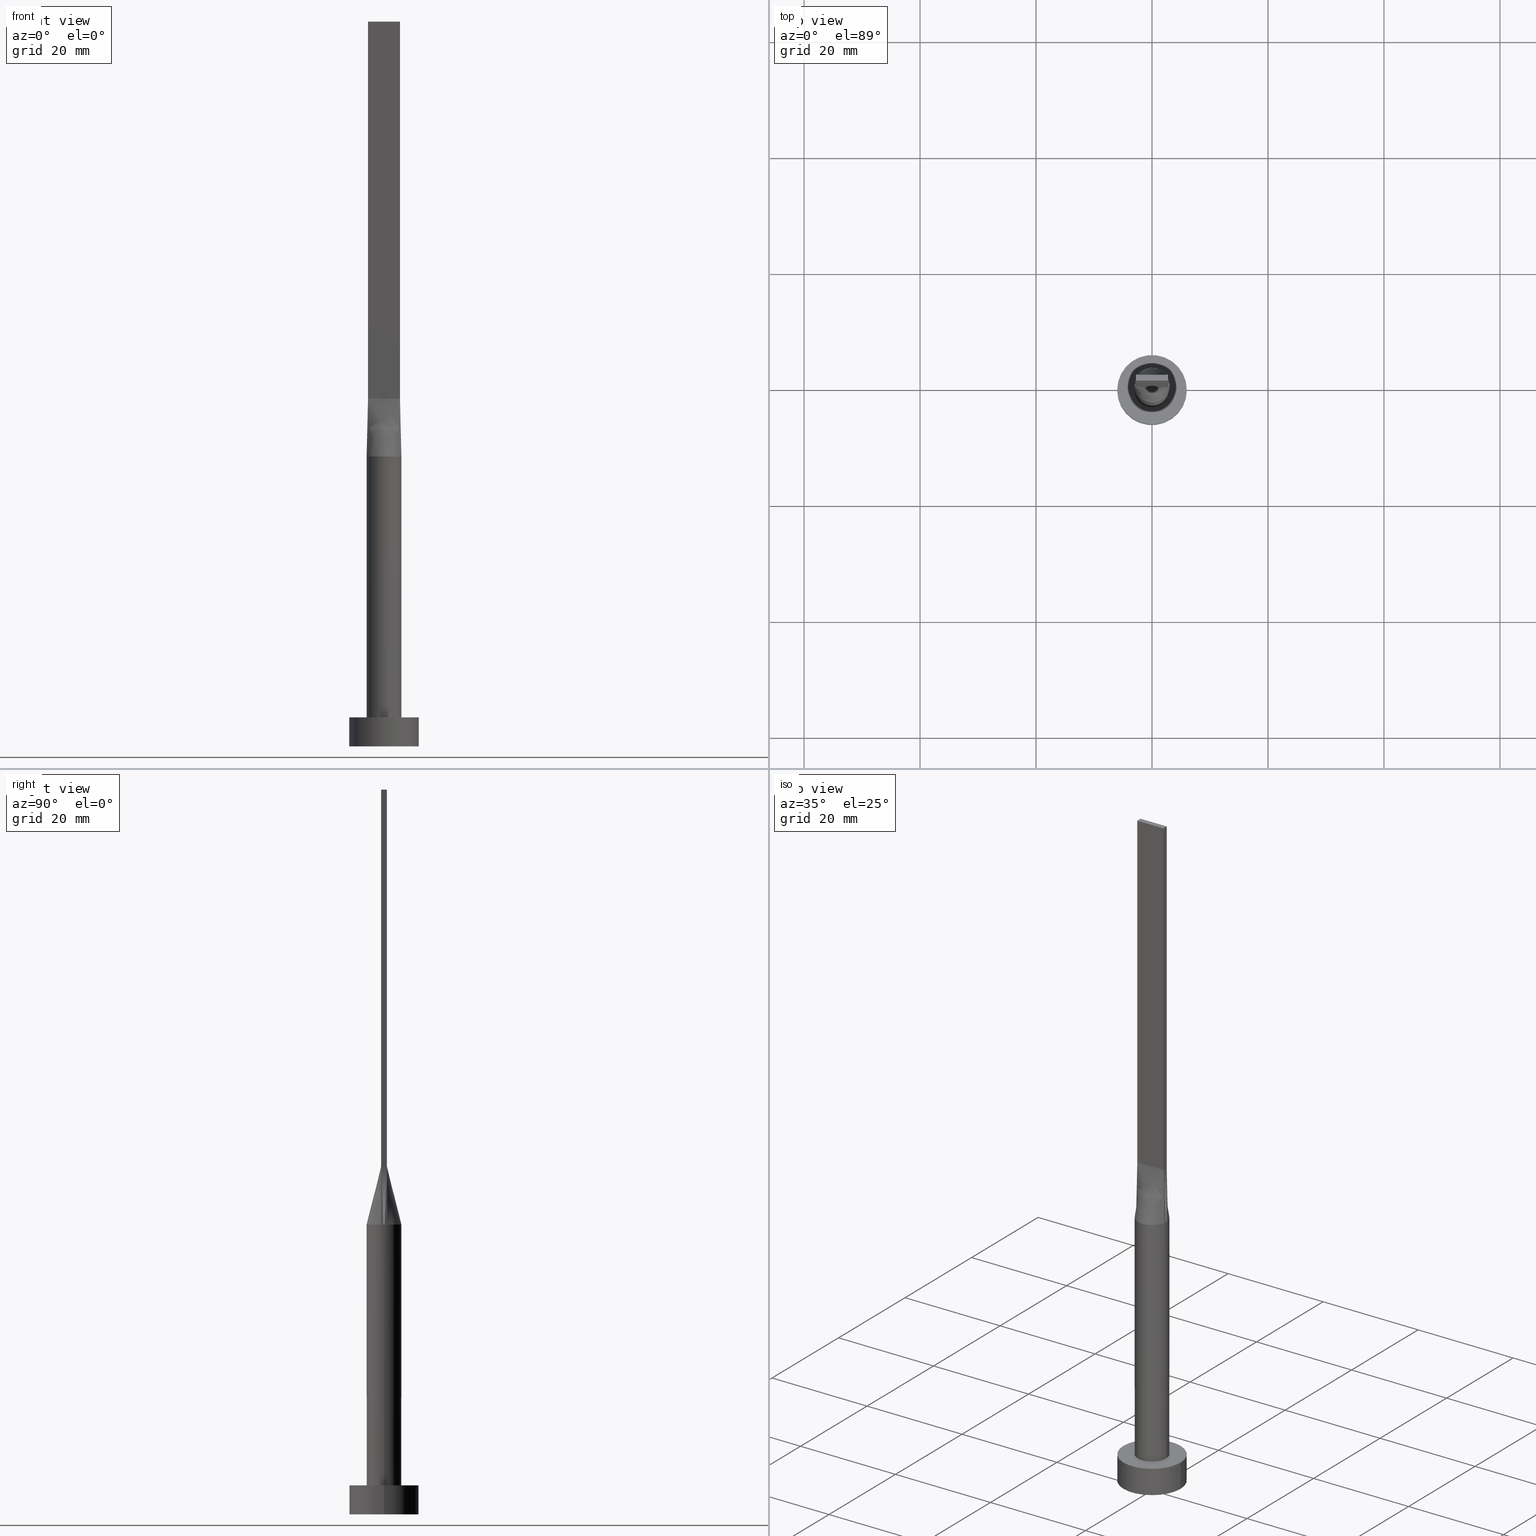
[diagram: canonical four-view strip — front | top / right | iso, engineering-drawing reading convention]
A machine part, canonical four-view strip (front | top / right | iso — engineering-drawing reading convention). The complete STEP part file that produces these views, byte-faithful:
ISO-10303-21;
HEADER;
FILE_DESCRIPTION (( 'STEP AP203' ),
    '1' );
FILE_NAME ('8f56.STEP',
    '2023-02-13T10:30:46',
    ( '' ),
    ( '' ),
    'SwSTEP 2.0',
    'SolidWorks 2019',
    '' );
FILE_SCHEMA (( 'CONFIG_CONTROL_DESIGN' ));
ENDSEC;

DATA;
#1 = ORIENTED_EDGE ( 'NONE', *, *, #362, .T. ) ;
#2 = CARTESIAN_POINT ( 'NONE',  ( -2.750000000000000000, -0.4999999999999994449, 60.00000000000000000 ) ) ;
#3 = DIRECTION ( 'NONE',  ( 1.000000000000000000, 0.000000000000000000, 0.000000000000000000 ) ) ;
#4 = ORIENTED_EDGE ( 'NONE', *, *, #206, .F. ) ;
#5 = EDGE_CURVE ( 'NONE', #502, #484, #500, .T. ) ;
#6 = CARTESIAN_POINT ( 'NONE',  ( 2.951871110830718514, 0.5367036202482695639, 49.99999999999999289 ) ) ;
#7 = CARTESIAN_POINT ( 'NONE',  ( 2.951896064709005785, -0.5367080392066733152, 49.99999999999999289 ) ) ;
#8 = ORIENTED_EDGE ( 'NONE', *, *, #559, .F. ) ;
#9 = CARTESIAN_POINT ( 'NONE',  ( -2.567367750129864401, 1.580669302822275357, 50.00000000000001421 ) ) ;
#10 = ORIENTED_EDGE ( 'NONE', *, *, #372, .T. ) ;
#11 = CARTESIAN_POINT ( 'NONE',  ( 0.000000000000000000, 0.000000000000000000, 125.0000000000000000 ) ) ;
#12 = ORIENTED_EDGE ( 'NONE', *, *, #499, .F. ) ;
#13 = APPROVAL_DATE_TIME ( #355, #298 ) ;
#14 = ADVANCED_FACE ( 'NONE', ( #145 ), #18, .T. ) ;
#15 = DIRECTION ( 'NONE',  ( 0.000000000000000000, 1.000000000000000000, 0.000000000000000000 ) ) ;
#16 = CARTESIAN_POINT ( 'NONE',  ( -3.000000000000000444, 0.000000000000000000, 5.000000000000000000 ) ) ;
#17 = LOCAL_TIME ( 11, 30, 46.00000000000000000, #408 ) ;
#18 = B_SPLINE_SURFACE_WITH_KNOTS ( 'NONE', 3, 1, ( 
 ( #245, #555 ),
 ( #194, #281 ),
 ( #67, #553 ),
 ( #468, #466 ),
 ( #22, #410 ),
 ( #517, #20 ) ),
 .UNSPECIFIED., .F., .F., .F.,
 ( 4, 2, 4 ),
 ( 2, 2 ),
 ( 0.000000000000000000, 0.5000000000000000000, 1.000000000000000000 ),
 ( 0.000000000000000000, 1.000000000000000000 ),
 .UNSPECIFIED. ) ;
#19 = EDGE_CURVE ( 'NONE', #549, #546, #68, .T. ) ;
#20 = CARTESIAN_POINT ( 'NONE',  ( -2.750000000000000000, -0.4999999999999993339, 60.00000000000000000 ) ) ;
#21 = SHAPE_DEFINITION_REPRESENTATION ( #417, #174 ) ;
#22 = CARTESIAN_POINT ( 'NONE',  ( -2.983609730299723317, -0.3606563145999489572, 49.99999999999999289 ) ) ;
#23 = ADVANCED_FACE ( 'NONE', ( #508 ), #109, .T. ) ;
#24 = CARTESIAN_POINT ( 'NONE',  ( 0.8331239790496237640, 2.909606296598776787, 49.99999999999998579 ) ) ;
#25 = LINE ( 'NONE', #207, #32 ) ;
#26 = DIRECTION ( 'NONE',  ( -1.000000000000000000, 0.000000000000000000, 0.000000000000000000 ) ) ;
#27 = CARTESIAN_POINT ( 'NONE',  ( 2.983609730299723317, 0.3606563145999492903, 49.99999999999999289 ) ) ;
#28 = CARTESIAN_POINT ( 'NONE',  ( -1.833333333333335702, -0.4999999999999995559, 60.00000000000000000 ) ) ;
#29 = CARTESIAN_POINT ( 'NONE',  ( 0.000000000000000000, 0.000000000000000000, 5.000000000000000000 ) ) ;
#30 = CARTESIAN_POINT ( 'NONE',  ( 2.850804865149861644, 0.5183281572999747233, 54.99999999999999289 ) ) ;
#31 = CARTESIAN_POINT ( 'NONE',  ( 2.951609730299722401, -0.5366563145999498907, 49.99999999999999289 ) ) ;
#32 = VECTOR ( 'NONE', #15, 1000.000000000000000 ) ;
#33 = CARTESIAN_POINT ( 'NONE',  ( 0.000000000000000000, 0.000000000000000000, 49.99999999999999289 ) ) ;
#34 = ORIENTED_EDGE ( 'NONE', *, *, #337, .T. ) ;
#35 =( LENGTH_UNIT ( ) NAMED_UNIT ( * ) SI_UNIT ( .MILLI., .METRE. ) );
#36 = LINE ( 'NONE', #125, #249 ) ;
#37 = ORIENTED_EDGE ( 'NONE', *, *, #402, .T. ) ;
#38 = EDGE_CURVE ( 'NONE', #286, #57, #346, .T. ) ;
#39 = ADVANCED_FACE ( 'NONE', ( #324 ), #242, .F. ) ;
#40 = FACE_OUTER_BOUND ( 'NONE', #399, .T. ) ;
#41 = VERTEX_POINT ( 'NONE', #461 ) ;
#42 = DESIGN_CONTEXT ( 'detailed design', #382, 'design' ) ;
#43 = DIRECTION ( 'NONE',  ( -1.000000000000000000, 5.913830031739115543E-17, 0.000000000000000000 ) ) ;
#44 = CARTESIAN_POINT ( 'NONE',  ( 2.567367750129863957, 1.580669302822274913, 49.99999999999999289 ) ) ;
#45 = ORIENTED_EDGE ( 'NONE', *, *, #59, .T. ) ;
#46 = CARTESIAN_POINT ( 'NONE',  ( 2.750000000000000000, -0.4999999999999997780, 125.0000000000000000 ) ) ;
#47 = CARTESIAN_POINT ( 'NONE',  ( -1.882426928433513336, 2.362790634184935623, 50.00000000000000000 ) ) ;
#48 = ORIENTED_EDGE ( 'NONE', *, *, #276, .T. ) ;
#49 = MANIFOLD_SOLID_BREP ( 'P�idat vysunut�m5', #62 ) ;
#50 = CARTESIAN_POINT ( 'NONE',  ( 0.2291666666666702101, 0.5000000000000002220, 60.00000000000000000 ) ) ;
#51 = ORIENTED_EDGE ( 'NONE', *, *, #533, .F. ) ;
#52 = CIRCLE ( 'NONE', #509, 3.000000000000000444 ) ;
#53 = CARTESIAN_POINT ( 'NONE',  ( -0.4172881767044976375, 2.999999999999999556, 49.99999999999998579 ) ) ;
#54 = VECTOR ( 'NONE', #69, 1000.000000000000114 ) ;
#55 = ORIENTED_EDGE ( 'NONE', *, *, #210, .T. ) ;
#56 = PLANE ( 'NONE',  #195 ) ;
#57 = VERTEX_POINT ( 'NONE', #16 ) ;
#58 = DATE_AND_TIME ( #232, #227 ) ;
#59 = EDGE_CURVE ( 'NONE', #551, #136, #464, .T. ) ;
#60 = CARTESIAN_POINT ( 'NONE',  ( 2.750000000000000000, 0.5000000000000002220, 60.00000000000000000 ) ) ;
#61 = ORIENTED_EDGE ( 'NONE', *, *, #198, .F. ) ;
#62 = CLOSED_SHELL ( 'NONE', ( #418, #23, #170, #103, #223, #431, #159, #401, #14, #225, #151, #454, #488, #39, #255 ) ) ;
#63 = CARTESIAN_POINT ( 'NONE',  ( -2.382399439808186692, 1.857547746650221265, 49.99999999999999289 ) ) ;
#64 = VECTOR ( 'NONE', #215, 1000.000000000000000 ) ;
#65 = PRODUCT_DEFINITION ( 'NEZN�M�', '', #258, #42 ) ;
#66 = LINE ( 'NONE', #187, #130 ) ;
#67 = CARTESIAN_POINT ( 'NONE',  ( -2.999609730299722887, 0.1803281572999750337, 49.99999999999999289 ) ) ;
#68 = B_SPLINE_CURVE_WITH_KNOTS ( 'NONE', 3,
 ( #239, #317, #190, #279, #364, #370, #510, #24, #275, #515, #360, #413, #189, #63, #368, #143, #554, #315 ),
 .UNSPECIFIED., .F., .F.,
 ( 4, 2, 2, 2, 2, 2, 2, 2, 4 ),
 ( 0.000000000000000000, 0.1250000000000000000, 0.2500000000000000000, 0.3750000000000000000, 0.5000000000000000000, 0.6250000000000000000, 0.7500000000000000000, 0.8750000000000000000, 1.000000000000000000 ),
 .UNSPECIFIED. ) ;
#69 = DIRECTION ( 'NONE',  ( 0.02015674154923146125, -0.003664862099860172716, 0.9997901152521495582 ) ) ;
#70 = CARTESIAN_POINT ( 'NONE',  ( 0.000000000000000000, 0.000000000000000000, 5.000000000000000000 ) ) ;
#71 = VECTOR ( 'NONE', #398, 1000.000000000000000 ) ;
#72 = FACE_OUTER_BOUND ( 'NONE', #437, .T. ) ;
#73 = DIRECTION ( 'NONE',  ( -0.02015674154923149941, -0.003664862099860237768, -0.9997901152521495582 ) ) ;
#74 = CYLINDRICAL_SURFACE ( 'NONE', #186, 3.000000000000000444 ) ;
#75 = DIRECTION ( 'NONE',  ( -1.000000000000000000, 0.000000000000000000, 0.000000000000000000 ) ) ;
#76 = VERTEX_POINT ( 'NONE', #236 ) ;
#77 = FACE_OUTER_BOUND ( 'NONE', #525, .T. ) ;
#78 = VECTOR ( 'NONE', #273, 1000.000000000000000 ) ;
#79 = CARTESIAN_POINT ( 'NONE',  ( 2.951609730299722401, -0.5366563145999492246, 49.99999999999999289 ) ) ;
#80 = CARTESIAN_POINT ( 'NONE',  ( -2.750000000000000000, -0.4999999999999994449, 125.0000000000000000 ) ) ;
#81 = VECTOR ( 'NONE', #523, 1000.000000000000000 ) ;
#82 = EDGE_CURVE ( 'NONE', #136, #76, #66, .T. ) ;
#83 = CARTESIAN_POINT ( 'NONE',  ( -2.291666666666667851, -0.4999999999999994449, 60.00000000000000000 ) ) ;
#84 = CARTESIAN_POINT ( 'NONE',  ( 2.907609730299723250, -0.7786563145999499946, 50.00000000000000000 ) ) ;
#85 = ORIENTED_EDGE ( 'NONE', *, *, #304, .F. ) ;
#86 = APPLICATION_PROTOCOL_DEFINITION ( 'international standard', 'config_control_design', 1994, #340 ) ;
#87 = CARTESIAN_POINT ( 'NONE',  ( 2.999804865149861666, 7.183978618307598805E-16, 49.99999999999999289 ) ) ;
#88 = ORIENTED_EDGE ( 'NONE', *, *, #313, .F. ) ;
#89 = LINE ( 'NONE', #259, #453 ) ;
#90 = ORIENTED_EDGE ( 'NONE', *, *, #323, .F. ) ;
#91 = PERSON_AND_ORGANIZATION ( #522, #397 ) ;
#92 = LINE ( 'NONE', #366, #578 ) ;
#93 = ORIENTED_EDGE ( 'NONE', *, *, #138, .T. ) ;
#94 = CARTESIAN_POINT ( 'NONE',  ( 1.604166666666669183, 0.5000000000000002220, 60.00000000000000000 ) ) ;
#95 = CARTESIAN_POINT ( 'NONE',  ( -2.850804865149861644, -0.5183281572999741682, 54.99999999999999289 ) ) ;
#96 = FACE_OUTER_BOUND ( 'NONE', #506, .T. ) ;
#97 = CC_DESIGN_PERSON_AND_ORGANIZATION_ASSIGNMENT ( #91, #266, ( #65 ) ) ;
#98 = VERTEX_POINT ( 'NONE', #238 ) ;
#99 = PERSON_AND_ORGANIZATION ( #522, #397 ) ;
#100 = CARTESIAN_POINT ( 'NONE',  ( -2.750000000000000000, 0.5000000000000002220, 125.0000000000000000 ) ) ;
#101 = VERTEX_POINT ( 'NONE', #412 ) ;
#102 = CARTESIAN_POINT ( 'NONE',  ( 2.750000000000000000, -0.4999999999999997780, 125.0000000000000000 ) ) ;
#103 = ADVANCED_FACE ( 'NONE', ( #326, #146 ), #152, .T. ) ;
#104 = DIRECTION ( 'NONE',  ( 0.000000000000000000, 0.000000000000000000, 1.000000000000000000 ) ) ;
#105 = CIRCLE ( 'NONE', #426, 3.000000000000000444 ) ;
#106 = AXIS2_PLACEMENT_3D ( 'NONE', #132, #302, #177 ) ;
#107 = CARTESIAN_POINT ( 'NONE',  ( 0.000000000000000000, 0.000000000000000000, 49.99999999999999289 ) ) ;
#108 = LINE ( 'NONE', #100, #492 ) ;
#109 = CYLINDRICAL_SURFACE ( 'NONE', #288, 6.000000000000000888 ) ;
#110 = DIRECTION ( 'NONE',  ( -0.000000000000000000, -0.000000000000000000, -1.000000000000000000 ) ) ;
#111 = DIRECTION ( 'NONE',  ( 1.000000000000000000, 0.000000000000000000, -0.000000000000000000 ) ) ;
#112 = EDGE_CURVE ( 'NONE', #41, #484, #52, .T. ) ;
#113 = AXIS2_PLACEMENT_3D ( 'NONE', #393, #482, #119 ) ;
#114 = DIRECTION ( 'NONE',  ( -0.000000000000000000, -0.000000000000000000, -1.000000000000000000 ) ) ;
#115 = CARTESIAN_POINT ( 'NONE',  ( -0.9166666666666704044, -0.4999999999999995559, 60.00000000000000000 ) ) ;
#116 = CARTESIAN_POINT ( 'NONE',  ( 0.000000000000000000, 0.000000000000000000, 5.000000000000000000 ) ) ;
#117 = DIRECTION ( 'NONE',  ( -0.02015674154923149941, -0.003664862099860194400, 0.9997901152521495582 ) ) ;
#118 = ORIENTED_EDGE ( 'NONE', *, *, #276, .F. ) ;
#119 = DIRECTION ( 'NONE',  ( 1.000000000000000000, 0.000000000000000000, 0.000000000000000000 ) ) ;
#120 = AXIS2_PLACEMENT_3D ( 'NONE', #102, #416, #104 ) ;
#121 = CARTESIAN_POINT ( 'NONE',  ( 0.2291666666666624941, -0.4999999999999995559, 60.00000000000000000 ) ) ;
#122 = ORIENTED_EDGE ( 'NONE', *, *, #544, .F. ) ;
#123 = PERSON_AND_ORGANIZATION_ROLE ( 'design_owner' ) ;
#124 = VECTOR ( 'NONE', #251, 1000.000000000000000 ) ;
#125 = CARTESIAN_POINT ( 'NONE',  ( -2.750000000000000000, 0.5000000000000002220, 60.00000000000000000 ) ) ;
#126 = VERTEX_POINT ( 'NONE', #289 ) ;
#127 = PERSON_AND_ORGANIZATION ( #522, #397 ) ;
#128 = CARTESIAN_POINT ( 'NONE',  ( 2.750000000000000000, -0.4999999999999997780, 60.00000000000000000 ) ) ;
#129 = CARTESIAN_POINT ( 'NONE',  ( 0.8331239790496237640, 2.909606296598776787, 49.99999999999998579 ) ) ;
#130 = VECTOR ( 'NONE', #562, 1000.000000000000000 ) ;
#131 = ORIENTED_EDGE ( 'NONE', *, *, #323, .T. ) ;
#132 = CARTESIAN_POINT ( 'NONE',  ( 0.000000000000000000, 0.000000000000000000, 0.000000000000000000 ) ) ;
#133 = DIRECTION ( 'NONE',  ( 0.000000000000000000, 0.000000000000000000, 1.000000000000000000 ) ) ;
#134 = ORIENTED_EDGE ( 'NONE', *, *, #362, .F. ) ;
#135 = CARTESIAN_POINT ( 'NONE',  ( 2.750000000000000000, 0.5000000000000002220, 60.00000000000000000 ) ) ;
#136 = VERTEX_POINT ( 'NONE', #433 ) ;
#137 = COORDINATED_UNIVERSAL_TIME_OFFSET ( 1, 0, .AHEAD. ) ;
#138 = EDGE_CURVE ( 'NONE', #183, #502, #36, .T. ) ;
#139 = CARTESIAN_POINT ( 'NONE',  ( 1.833333333333335258, 0.5000000000000002220, 60.00000000000000000 ) ) ;
#140 = ORIENTED_EDGE ( 'NONE', *, *, #38, .T. ) ;
#141 = CARTESIAN_POINT ( 'NONE',  ( -2.951609730299722401, 0.5366563145999488915, 49.99999999999999289 ) ) ;
#142 = VERTEX_POINT ( 'NONE', #87 ) ;
#143 = CARTESIAN_POINT ( 'NONE',  ( -2.829409566978765334, 1.041313647073049298, 50.00000000000002132 ) ) ;
#144 = CALENDAR_DATE ( 2023, 13, 2 ) ;
#145 = FACE_OUTER_BOUND ( 'NONE', #538, .T. ) ;
#146 = FACE_OUTER_BOUND ( 'NONE', #460, .T. ) ;
#147 = LOCAL_TIME ( 11, 30, 46.00000000000000000, #396 ) ;
#148 = DIRECTION ( 'NONE',  ( -0.000000000000000000, -0.000000000000000000, -1.000000000000000000 ) ) ;
#149 = DIRECTION ( 'NONE',  ( 1.000000000000000000, 0.000000000000000000, 0.000000000000000000 ) ) ;
#150 = DIRECTION ( 'NONE',  ( 0.000000000000000000, 0.000000000000000000, 1.000000000000000000 ) ) ;
#151 = ADVANCED_FACE ( 'NONE', ( #381 ), #483, .F. ) ;
#152 = PLANE ( 'NONE',  #539 ) ;
#153 = CARTESIAN_POINT ( 'NONE',  ( 2.750000000000000000, 0.3333333333333333703, 59.99999999999999289 ) ) ;
#154 = CARTESIAN_POINT ( 'NONE',  ( 2.567367750129864401, -1.580669302822276023, 50.00000000000001421 ) ) ;
#155 = CIRCLE ( 'NONE', #529, 6.000000000000000888 ) ;
#156 = CIRCLE ( 'NONE', #440, 3.000000000000000444 ) ;
#157 = CARTESIAN_POINT ( 'NONE',  ( 0.000000000000000000, 0.000000000000000000, 49.99999999999999289 ) ) ;
#158 = DIRECTION ( 'NONE',  ( 0.000000000000000000, -0.000000000000000000, -1.000000000000000000 ) ) ;
#159 = ADVANCED_FACE ( 'NONE', ( #480 ), #472, .T. ) ;
#160 = DIRECTION ( 'NONE',  ( 0.000000000000000000, 0.000000000000000000, 1.000000000000000000 ) ) ;
#161 = CARTESIAN_POINT ( 'NONE',  ( -0.8331239790496242081, -2.909606296598777231, 49.99999999999998579 ) ) ;
#162 = VERTEX_POINT ( 'NONE', #283 ) ;
#163 = CARTESIAN_POINT ( 'NONE',  ( 6.000000000000000888, 7.347880794884120722E-16, 5.000000000000000000 ) ) ;
#164 = CARTESIAN_POINT ( 'NONE',  ( 1.566158656300001395, -2.589797565249319256, 49.99999999999998579 ) ) ;
#165 = APPROVAL_STATUS ( 'not_yet_approved' ) ;
#166 = AXIS2_PLACEMENT_3D ( 'NONE', #29, #150, #334 ) ;
#167 = CARTESIAN_POINT ( 'NONE',  ( 0.000000000000000000, 0.000000000000000000, 5.000000000000000000 ) ) ;
#168 = ORIENTED_EDGE ( 'NONE', *, *, #216, .F. ) ;
#169 = LINE ( 'NONE', #163, #64 ) ;
#170 = ADVANCED_FACE ( 'NONE', ( #40 ), #213, .T. ) ;
#171 = CARTESIAN_POINT ( 'NONE',  ( 2.951609730299722401, 0.5366563145999496687, 49.99999999999999289 ) ) ;
#172 = ORIENTED_EDGE ( 'NONE', *, *, #477, .F. ) ;
#173 = CARTESIAN_POINT ( 'NONE',  ( -2.750000000000000000, -0.4999999999999994449, 60.00000000000000000 ) ) ;
#174 = ADVANCED_BREP_SHAPE_REPRESENTATION ( '8f56', ( #49, #106 ), #320 ) ;
#175 = CARTESIAN_POINT ( 'NONE',  ( -2.750000000000000000, -0.4999999999999994449, 125.0000000000000000 ) ) ;
#176 = ORIENTED_EDGE ( 'NONE', *, *, #112, .T. ) ;
#177 = DIRECTION ( 'NONE',  ( 1.000000000000000000, 0.000000000000000000, 0.000000000000000000 ) ) ;
#178 = VECTOR ( 'NONE', #442, 1000.000000000000000 ) ;
#179 = DIRECTION ( 'NONE',  ( 0.000000000000000000, 0.000000000000000000, 1.000000000000000000 ) ) ;
#180 = ORIENTED_EDGE ( 'NONE', *, *, #573, .F. ) ;
#181 = APPROVAL_ROLE ( '' ) ;
#182 = CARTESIAN_POINT ( 'NONE',  ( 0.9166666666666698493, 0.5000000000000002220, 60.00000000000000000 ) ) ;
#183 = VERTEX_POINT ( 'NONE', #524 ) ;
#184 = CARTESIAN_POINT ( 'NONE',  ( 0.000000000000000000, 0.000000000000000000, 0.000000000000000000 ) ) ;
#185 = ORIENTED_EDGE ( 'NONE', *, *, #451, .T. ) ;
#186 = AXIS2_PLACEMENT_3D ( 'NONE', #278, #148, #322 ) ;
#187 = CARTESIAN_POINT ( 'NONE',  ( 2.750000000000000000, 0.5000000000000002220, 60.00000000000000000 ) ) ;
#188 = PERSON_AND_ORGANIZATION_ROLE ( 'classification_officer' ) ;
#189 = CARTESIAN_POINT ( 'NONE',  ( -1.882426928433513336, 2.362790634184935623, 50.00000000000000000 ) ) ;
#190 = CARTESIAN_POINT ( 'NONE',  ( 2.829409566978765778, 1.041313647073049298, 50.00000000000002132 ) ) ;
#191 = AXIS2_PLACEMENT_3D ( 'NONE', #570, #527, #158 ) ;
#192 = CIRCLE ( 'NONE', #345, 3.000000000000000444 ) ;
#193 = DIRECTION ( 'NONE',  ( -1.000000000000000000, 0.000000000000000000, 0.000000000000000000 ) ) ;
#194 = CARTESIAN_POINT ( 'NONE',  ( -2.983609730299722429, 0.3606563145999497344, 49.99999999999999289 ) ) ;
#195 = AXIS2_PLACEMENT_3D ( 'NONE', #11, #179, #495 ) ;
#196 = APPROVAL ( #165, 'NEUR�EN�' ) ;
#197 = PLANE ( 'NONE',  #367 ) ;
#198 = EDGE_CURVE ( 'NONE', #549, #76, #423, .T. ) ;
#199 = CARTESIAN_POINT ( 'NONE',  ( 2.750000000000000000, -0.4999999999999997780, 125.0000000000000000 ) ) ;
#200 = CARTESIAN_POINT ( 'NONE',  ( 2.951609730299722845, 0.5366563145999491136, 49.99999999999999289 ) ) ;
#201 = CARTESIAN_POINT ( 'NONE',  ( -1.145833333333336812, -0.4999999999999995559, 60.00000000000000000 ) ) ;
#202 = CARTESIAN_POINT ( 'NONE',  ( 2.999609730299722887, -0.1803281572999752003, 49.99999999999999289 ) ) ;
#203 = CARTESIAN_POINT ( 'NONE',  ( 1.833333333333330817, -0.4999999999999997780, 60.00000000000000000 ) ) ;
#204 = AXIS2_PLACEMENT_3D ( 'NONE', #569, #160, #469 ) ;
#205 = VERTEX_POINT ( 'NONE', #285 ) ;
#206 = EDGE_CURVE ( 'NONE', #41, #57, #478, .T. ) ;
#207 = CARTESIAN_POINT ( 'NONE',  ( 2.750000000000000000, -0.4999999999999997780, 125.0000000000000000 ) ) ;
#208 = CARTESIAN_POINT ( 'NONE',  ( 1.882426928433513114, -2.362790634184936511, 50.00000000000000000 ) ) ;
#209 = ORIENTED_EDGE ( 'NONE', *, *, #19, .T. ) ;
#210 = EDGE_CURVE ( 'NONE', #546, #41, #192, .T. ) ;
#211 = CARTESIAN_POINT ( 'NONE',  ( -2.750000000000000000, -0.4999999999999994449, 60.00000000000000000 ) ) ;
#212 = PERSON_AND_ORGANIZATION ( #522, #397 ) ;
#213 = CYLINDRICAL_SURFACE ( 'NONE', #318, 6.000000000000000888 ) ;
#214 = ORIENTED_EDGE ( 'NONE', *, *, #5, .F. ) ;
#215 = DIRECTION ( 'NONE',  ( -0.000000000000000000, -0.000000000000000000, -1.000000000000000000 ) ) ;
#216 = EDGE_CURVE ( 'NONE', #142, #286, #230, .T. ) ;
#217 = CARTESIAN_POINT ( 'NONE',  ( -2.520833333333333037, 0.5000000000000002220, 60.00000000000000000 ) ) ;
#218 = CARTESIAN_POINT ( 'NONE',  ( -0.8331239790496237640, 2.909606296598777231, 50.00000000000000000 ) ) ;
#219 = EDGE_LOOP ( 'NONE', ( #344, #475 ) ) ;
#220 = CARTESIAN_POINT ( 'NONE',  ( -2.750000000000000000, 0.5000000000000002220, 60.00000000000000000 ) ) ;
#221 = CC_DESIGN_PERSON_AND_ORGANIZATION_ASSIGNMENT ( #462, #188, ( #511 ) ) ;
#222 = CARTESIAN_POINT ( 'NONE',  ( -0.9166666666666635210, 0.5000000000000002220, 60.00000000000000000 ) ) ;
#223 = ADVANCED_FACE ( 'NONE', ( #343 ), #450, .F. ) ;
#224 = ORIENTED_EDGE ( 'NONE', *, *, #427, .T. ) ;
#225 = ADVANCED_FACE ( 'NONE', ( #446 ), #373, .T. ) ;
#226 = APPROVAL_STATUS ( 'not_yet_approved' ) ;
#227 = LOCAL_TIME ( 11, 30, 46.00000000000000000, #411 ) ;
#228 = CARTESIAN_POINT ( 'NONE',  ( -2.382399439808186692, 1.857547746650221265, 49.99999999999999289 ) ) ;
#229 = VERTEX_POINT ( 'NONE', #7 ) ;
#230 = LINE ( 'NONE', #299, #71 ) ;
#231 = ORIENTED_EDGE ( 'NONE', *, *, #261, .T. ) ;
#232 = CALENDAR_DATE ( 2023, 13, 2 ) ;
#233 = DIRECTION ( 'NONE',  ( 0.000000000000000000, 0.000000000000000000, 1.000000000000000000 ) ) ;
#234 = ORIENTED_EDGE ( 'NONE', *, *, #556, .F. ) ;
#235 = CC_DESIGN_APPROVAL ( #298, ( #511 ) ) ;
#236 = CARTESIAN_POINT ( 'NONE',  ( 2.750000000000000000, 0.5000000000000002220, 60.00000000000000000 ) ) ;
#237 = PERSON_AND_ORGANIZATION_ROLE ( 'design_supplier' ) ;
#238 = CARTESIAN_POINT ( 'NONE',  ( 6.000000000000000888, 7.347880794884120722E-16, 5.000000000000000000 ) ) ;
#239 = CARTESIAN_POINT ( 'NONE',  ( 2.951871110830718514, 0.5367036202482695639, 49.99999999999999289 ) ) ;
#240 = EDGE_CURVE ( 'NONE', #229, #136, #89, .T. ) ;
#241 = CARTESIAN_POINT ( 'NONE',  ( -2.850804865149861200, 0.5183281572999746123, 54.99999999999999289 ) ) ;
#242 = PLANE ( 'NONE',  #120 ) ;
#243 = AXIS2_PLACEMENT_3D ( 'NONE', #157, #233, #371 ) ;
#244 = CARTESIAN_POINT ( 'NONE',  ( 2.750000000000000000, -0.1666666666666667129, 59.99999999999999289 ) ) ;
#245 = CARTESIAN_POINT ( 'NONE',  ( -2.951609730299722401, 0.5366563145999495577, 49.99999999999999289 ) ) ;
#246 = LINE ( 'NONE', #241, #54 ) ;
#247 = DIRECTION ( 'NONE',  ( -0.000000000000000000, -0.000000000000000000, -1.000000000000000000 ) ) ;
#248 = DIRECTION ( 'NONE',  ( 0.000000000000000000, 0.000000000000000000, 1.000000000000000000 ) ) ;
#249 = VECTOR ( 'NONE', #328, 1000.000000000000000 ) ;
#250 = CARTESIAN_POINT ( 'NONE',  ( -3.000000000000000444, 0.000000000000000000, 49.99999999999999289 ) ) ;
#251 = DIRECTION ( 'NONE',  ( -1.000000000000000000, -0.000000000000000000, -0.000000000000000000 ) ) ;
#252 = CARTESIAN_POINT ( 'NONE',  ( -2.907609730299723250, -0.7786563145999485513, 49.99999999999999289 ) ) ;
#253 = ORIENTED_EDGE ( 'NONE', *, *, #216, .T. ) ;
#254 = CARTESIAN_POINT ( 'NONE',  ( 2.829409566978765334, -1.041313647073049742, 50.00000000000002132 ) ) ;
#255 = ADVANCED_FACE ( 'NONE', ( #96 ), #56, .T. ) ;
#256 = CARTESIAN_POINT ( 'NONE',  ( -0.4583333333333299286, 0.5000000000000002220, 60.00000000000000000 ) ) ;
#257 = ORIENTED_EDGE ( 'NONE', *, *, #261, .F. ) ;
#258 = PRODUCT_DEFINITION_FORMATION_WITH_SPECIFIED_SOURCE ( 'LIBOVOLN�', '', #363, .NOT_KNOWN. ) ;
#259 = CARTESIAN_POINT ( 'NONE',  ( 2.850804865149861200, -0.5183281572999745013, 54.99999999999999289 ) ) ;
#260 = ORIENTED_EDGE ( 'NONE', *, *, #240, .T. ) ;
#261 = EDGE_CURVE ( 'NONE', #430, #126, #155, .T. ) ;
#262 = DIRECTION ( 'NONE',  ( 0.000000000000000000, 0.000000000000000000, 1.000000000000000000 ) ) ;
#263 = EDGE_LOOP ( 'NONE', ( #168, #358, #444, #424, #333, #34 ) ) ;
#264 = CARTESIAN_POINT ( 'NONE',  ( 0.4172881767044975820, 3.000000000000000000, 50.00000000000000000 ) ) ;
#265 = ORIENTED_EDGE ( 'NONE', *, *, #82, .T. ) ;
#266 = PERSON_AND_ORGANIZATION_ROLE ( 'creator' ) ;
#267 = CARTESIAN_POINT ( 'NONE',  ( 2.520833333333333925, 0.5000000000000002220, 60.00000000000000000 ) ) ;
#268 = ORIENTED_EDGE ( 'NONE', *, *, #5, .T. ) ;
#269 = CARTESIAN_POINT ( 'NONE',  ( 2.750000000000000000, 0.1666666666666666019, 59.99999999999999289 ) ) ;
#270 = ORIENTED_EDGE ( 'NONE', *, *, #59, .F. ) ;
#271 = DATE_AND_TIME ( #552, #493 ) ;
#272 = CC_DESIGN_PERSON_AND_ORGANIZATION_ASSIGNMENT ( #458, #400, ( #258 ) ) ;
#273 = DIRECTION ( 'NONE',  ( -0.000000000000000000, -0.000000000000000000, -1.000000000000000000 ) ) ;
#274 = AXIS2_PLACEMENT_3D ( 'NONE', #116, #248, #284 ) ;
#275 = CARTESIAN_POINT ( 'NONE',  ( 0.4172881767044975820, 3.000000000000000000, 50.00000000000000000 ) ) ;
#276 = EDGE_CURVE ( 'NONE', #101, #502, #505, .T. ) ;
#277 = DIRECTION ( 'NONE',  ( 0.000000000000000000, 0.000000000000000000, 1.000000000000000000 ) ) ;
#278 = CARTESIAN_POINT ( 'NONE',  ( 0.000000000000000000, 0.000000000000000000, 49.99999999999999289 ) ) ;
#279 = CARTESIAN_POINT ( 'NONE',  ( 2.567367750129863957, 1.580669302822274913, 49.99999999999999289 ) ) ;
#280 = DIRECTION ( 'NONE',  ( 1.000000000000000000, 3.552713678800500929E-15, 0.000000000000000000 ) ) ;
#281 = CARTESIAN_POINT ( 'NONE',  ( -2.750000000000000000, 0.3333333333333337034, 59.99999999999999289 ) ) ;
#282 = CARTESIAN_POINT ( 'NONE',  ( 2.983609730299722429, -0.3606563145999500120, 49.99999999999999289 ) ) ;
#283 = CARTESIAN_POINT ( 'NONE',  ( 2.750000000000000000, 0.5000000000000002220, 125.0000000000000000 ) ) ;
#284 = DIRECTION ( 'NONE',  ( 1.000000000000000000, 0.000000000000000000, 0.000000000000000000 ) ) ;
#285 = CARTESIAN_POINT ( 'NONE',  ( -6.000000000000000888, 0.000000000000000000, 5.000000000000000000 ) ) ;
#286 = VERTEX_POINT ( 'NONE', #305 ) ;
#287 = DIRECTION ( 'NONE',  ( 1.000000000000000000, 0.000000000000000000, 0.000000000000000000 ) ) ;
#288 = AXIS2_PLACEMENT_3D ( 'NONE', #70, #361, #26 ) ;
#289 = CARTESIAN_POINT ( 'NONE',  ( -6.000000000000000888, 0.000000000000000000, 0.000000000000000000 ) ) ;
#290 = EDGE_LOOP ( 'NONE', ( #234, #253, #140, #4, #568, #348 ) ) ;
#291 = APPROVAL_PERSON_ORGANIZATION ( #99, #298, #316 ) ;
#292 = CARTESIAN_POINT ( 'NONE',  ( -6.000000000000000888, 0.000000000000000000, 5.000000000000000000 ) ) ;
#293 = CC_DESIGN_PERSON_AND_ORGANIZATION_ASSIGNMENT ( #127, #123, ( #363 ) ) ;
#294 = CARTESIAN_POINT ( 'NONE',  ( 0.4172881767044969714, -3.000000000000000444, 49.99999999999998579 ) ) ;
#295 = COORDINATED_UNIVERSAL_TIME_OFFSET ( 1, 0, .AHEAD. ) ;
#296 = CARTESIAN_POINT ( 'NONE',  ( 0.9166666666666628549, -0.4999999999999995559, 60.00000000000000000 ) ) ;
#297 = DIRECTION ( 'NONE',  ( 0.000000000000000000, 0.000000000000000000, 1.000000000000000000 ) ) ;
#298 = APPROVAL ( #311, 'NEUR�EN�' ) ;
#299 = CARTESIAN_POINT ( 'NONE',  ( 3.000000000000000444, 3.673940397442059868E-16, 49.99999999999999289 ) ) ;
#300 = ORIENTED_EDGE ( 'NONE', *, *, #198, .T. ) ;
#301 = AXIS2_PLACEMENT_3D ( 'NONE', #550, #262, #545 ) ;
#302 = DIRECTION ( 'NONE',  ( 0.000000000000000000, 0.000000000000000000, 1.000000000000000000 ) ) ;
#303 = CC_DESIGN_APPROVAL ( #196, ( #65 ) ) ;
#304 = EDGE_CURVE ( 'NONE', #457, #183, #92, .T. ) ;
#305 = CARTESIAN_POINT ( 'NONE',  ( 3.000000000000000444, 3.673940397442059868E-16, 5.000000000000000000 ) ) ;
#306 = EDGE_LOOP ( 'NONE', ( #265, #90, #134, #45 ) ) ;
#307 = CARTESIAN_POINT ( 'NONE',  ( 2.907609730299723250, 0.7786563145999496616, 49.99999999999999289 ) ) ;
#308 = ORIENTED_EDGE ( 'NONE', *, *, #544, .T. ) ;
#309 = CARTESIAN_POINT ( 'NONE',  ( -2.291666666666665630, 0.5000000000000002220, 60.00000000000000000 ) ) ;
#310 = ORIENTED_EDGE ( 'NONE', *, *, #304, .T. ) ;
#311 = APPROVAL_STATUS ( 'not_yet_approved' ) ;
#312 = DIRECTION ( 'NONE',  ( 0.000000000000000000, 0.000000000000000000, 1.000000000000000000 ) ) ;
#313 = EDGE_CURVE ( 'NONE', #457, #101, #108, .T. ) ;
#314 = EDGE_LOOP ( 'NONE', ( #496, #395, #231, #51 ) ) ;
#315 = CARTESIAN_POINT ( 'NONE',  ( -2.951881273711814302, 0.5367053345652096352, 49.99999999999999289 ) ) ;
#316 = APPROVAL_ROLE ( '' ) ;
#317 = CARTESIAN_POINT ( 'NONE',  ( 2.907609730299723250, 0.7786563145999496616, 49.99999999999999289 ) ) ;
#318 = AXIS2_PLACEMENT_3D ( 'NONE', #167, #247, #75 ) ;
#319 = AXIS2_PLACEMENT_3D ( 'NONE', #467, #114, #193 ) ;
#320 =( GEOMETRIC_REPRESENTATION_CONTEXT ( 3 ) GLOBAL_UNCERTAINTY_ASSIGNED_CONTEXT ( ( #576 ) ) GLOBAL_UNIT_ASSIGNED_CONTEXT ( ( #35, #490, #383 ) ) REPRESENTATION_CONTEXT ( 'NONE', 'WORKASPACE' ) );
#321 = CARTESIAN_POINT ( 'NONE',  ( 0.000000000000000000, 0.000000000000000000, 5.000000000000000000 ) ) ;
#322 = DIRECTION ( 'NONE',  ( -1.000000000000000000, 0.000000000000000000, 0.000000000000000000 ) ) ;
#323 = EDGE_CURVE ( 'NONE', #162, #76, #563, .T. ) ;
#324 = FACE_OUTER_BOUND ( 'NONE', #306, .T. ) ;
#325 = CARTESIAN_POINT ( 'NONE',  ( 2.750000000000000000, -0.4999999999999997780, 60.00000000000000000 ) ) ;
#326 = FACE_BOUND ( 'NONE', #219, .T. ) ;
#327 = FACE_OUTER_BOUND ( 'NONE', #290, .T. ) ;
#328 = DIRECTION ( 'NONE',  ( 0.000000000000000000, -1.000000000000000000, 0.000000000000000000 ) ) ;
#329 = AXIS2_PLACEMENT_3D ( 'NONE', #80, #385, #43 ) ;
#330 = ORIENTED_EDGE ( 'NONE', *, *, #465, .T. ) ;
#331 = CARTESIAN_POINT ( 'NONE',  ( -2.750000000000000000, -0.4999999999999994449, 125.0000000000000000 ) ) ;
#332 = CARTESIAN_POINT ( 'NONE',  ( -1.882426928433514224, -2.362790634184934291, 49.99999999999998579 ) ) ;
#333 = ORIENTED_EDGE ( 'NONE', *, *, #206, .T. ) ;
#334 = DIRECTION ( 'NONE',  ( 1.000000000000000000, 0.000000000000000000, 0.000000000000000000 ) ) ;
#335 = CARTESIAN_POINT ( 'NONE',  ( 2.291666666666664742, -0.4999999999999997780, 60.00000000000000000 ) ) ;
#336 = MECHANICAL_CONTEXT ( 'NONE', #340, 'mechanical' ) ;
#337 = EDGE_CURVE ( 'NONE', #57, #286, #415, .T. ) ;
#338 = CARTESIAN_POINT ( 'NONE',  ( 1.604166666666663854, -0.4999999999999997780, 60.00000000000000000 ) ) ;
#339 = VECTOR ( 'NONE', #541, 1000.000000000000000 ) ;
#340 = APPLICATION_CONTEXT ( 'configuration controlled 3d designs of mechanical parts and assemblies' ) ;
#341 = CARTESIAN_POINT ( 'NONE',  ( -2.951881273711814302, 0.5367053345652096352, 49.99999999999999289 ) ) ;
#342 = CARTESIAN_POINT ( 'NONE',  ( -2.382399439808189356, -1.857547746650220599, 50.00000000000000000 ) ) ;
#343 = FACE_OUTER_BOUND ( 'NONE', #543, .T. ) ;
#344 = ORIENTED_EDGE ( 'NONE', *, *, #337, .F. ) ;
#345 = AXIS2_PLACEMENT_3D ( 'NONE', #33, #133, #351 ) ;
#346 = CIRCLE ( 'NONE', #375, 3.000000000000000444 ) ;
#347 = CARTESIAN_POINT ( 'NONE',  ( 0.4583333333333368675, 0.5000000000000002220, 60.00000000000000000 ) ) ;
#348 = ORIENTED_EDGE ( 'NONE', *, *, #19, .F. ) ;
#349 = CIRCLE ( 'NONE', #166, 6.000000000000000888 ) ;
#350 = CIRCLE ( 'NONE', #274, 6.000000000000000888 ) ;
#351 = DIRECTION ( 'NONE',  ( 1.000000000000000000, 0.000000000000000000, 0.000000000000000000 ) ) ;
#352 = ORIENTED_EDGE ( 'NONE', *, *, #514, .F. ) ;
#353 = CARTESIAN_POINT ( 'NONE',  ( -2.829409566978765334, 1.041313647073049298, 50.00000000000002132 ) ) ;
#354 = EDGE_LOOP ( 'NONE', ( #93, #118, #88, #310 ) ) ;
#355 = DATE_AND_TIME ( #504, #17 ) ;
#356 = APPROVAL ( #226, 'NEUR�EN�' ) ;
#357 = CARTESIAN_POINT ( 'NONE',  ( 2.291666666666667851, 0.5000000000000002220, 60.00000000000000000 ) ) ;
#358 = ORIENTED_EDGE ( 'NONE', *, *, #402, .F. ) ;
#359 = DATE_TIME_ROLE ( 'creation_date' ) ;
#360 = CARTESIAN_POINT ( 'NONE',  ( -0.8331239790496237640, 2.909606296598777231, 50.00000000000000000 ) ) ;
#361 = DIRECTION ( 'NONE',  ( -0.000000000000000000, -0.000000000000000000, -1.000000000000000000 ) ) ;
#362 = EDGE_CURVE ( 'NONE', #551, #162, #25, .T. ) ;
#363 = PRODUCT ( '8f56', '8f56', '', ( #336 ) ) ;
#364 = CARTESIAN_POINT ( 'NONE',  ( 2.382399439808187580, 1.857547746650221709, 50.00000000000000000 ) ) ;
#365 = VECTOR ( 'NONE', #117, 1000.000000000000114 ) ;
#366 = CARTESIAN_POINT ( 'NONE',  ( -2.750000000000000000, 0.5000000000000002220, 125.0000000000000000 ) ) ;
#367 = AXIS2_PLACEMENT_3D ( 'NONE', #516, #369, #561 ) ;
#368 = CARTESIAN_POINT ( 'NONE',  ( -2.567367750129864401, 1.580669302822275357, 50.00000000000001421 ) ) ;
#369 = DIRECTION ( 'NONE',  ( 1.000000000000000000, 0.000000000000000000, -0.000000000000000000 ) ) ;
#370 = CARTESIAN_POINT ( 'NONE',  ( 1.882426928433512892, 2.362790634184934291, 49.99999999999998579 ) ) ;
#371 = DIRECTION ( 'NONE',  ( 1.000000000000000000, 0.000000000000000000, 0.000000000000000000 ) ) ;
#372 = EDGE_CURVE ( 'NONE', #98, #205, #349, .T. ) ;
#373 = B_SPLINE_SURFACE_WITH_KNOTS ( 'NONE', 3, 1, ( 
 ( #171, #135 ),
 ( #307, #267 ),
 ( #391, #357 ),
 ( #44, #139 ),
 ( #389, #94 ),
 ( #439, #581 ),
 ( #491, #182 ),
 ( #129, #347 ),
 ( #264, #50 ),
 ( #53, #456 ),
 ( #218, #256 ),
 ( #537, #222 ),
 ( #47, #498 ),
 ( #228, #403 ),
 ( #9, #548 ),
 ( #353, #309 ),
 ( #394, #217 ),
 ( #141, #501 ) ),
 .UNSPECIFIED., .F., .F., .F.,
 ( 4, 2, 2, 2, 2, 2, 2, 2, 4 ),
 ( 2, 2 ),
 ( 0.000000000000000000, 0.1250000000000000000, 0.2500000000000000000, 0.3750000000000000000, 0.5000000000000000000, 0.6250000000000000000, 0.7500000000000000000, 0.8750000000000000000, 1.000000000000000000 ),
 ( 0.000000000000000000, 1.000000000000000000 ),
 .UNSPECIFIED. ) ;
#374 = CARTESIAN_POINT ( 'NONE',  ( -1.604166666666669627, -0.4999999999999995559, 60.00000000000000000 ) ) ;
#375 = AXIS2_PLACEMENT_3D ( 'NONE', #470, #560, #149 ) ;
#376 = CARTESIAN_POINT ( 'NONE',  ( 2.999609730299722887, 0.1803281572999744509, 49.99999999999999289 ) ) ;
#377 = CARTESIAN_POINT ( 'NONE',  ( 2.382399439808186692, -1.857547746650222154, 49.99999999999999289 ) ) ;
#378 = APPROVAL_PERSON_ORGANIZATION ( #547, #356, #181 ) ;
#379 = CARTESIAN_POINT ( 'NONE',  ( 0.000000000000000000, 0.000000000000000000, 49.99999999999999289 ) ) ;
#380 = PRODUCT_RELATED_PRODUCT_CATEGORY ( 'detail', '', ( #363 ) ) ;
#381 = FACE_OUTER_BOUND ( 'NONE', #575, .T. ) ;
#382 = APPLICATION_CONTEXT ( 'configuration controlled 3d designs of mechanical parts and assemblies' ) ;
#383 =( NAMED_UNIT ( * ) SI_UNIT ( $, .STERADIAN. ) SOLID_ANGLE_UNIT ( ) );
#384 = CARTESIAN_POINT ( 'NONE',  ( -2.567367750129864845, -1.580669302822274691, 49.99999999999999289 ) ) ;
#385 = DIRECTION ( 'NONE',  ( 5.913830031739115543E-17, 1.000000000000000000, -0.000000000000000000 ) ) ;
#386 = DIRECTION ( 'NONE',  ( 1.000000000000000000, 0.000000000000000000, 0.000000000000000000 ) ) ;
#387 = ORIENTED_EDGE ( 'NONE', *, *, #556, .T. ) ;
#388 = LINE ( 'NONE', #2, #519 ) ;
#389 = CARTESIAN_POINT ( 'NONE',  ( 2.382399439808187580, 1.857547746650221709, 50.00000000000000000 ) ) ;
#390 = ORIENTED_EDGE ( 'NONE', *, *, #514, .T. ) ;
#391 = CARTESIAN_POINT ( 'NONE',  ( 2.829409566978765778, 1.041313647073049298, 50.00000000000002132 ) ) ;
#392 = ORIENTED_EDGE ( 'NONE', *, *, #138, .F. ) ;
#393 = CARTESIAN_POINT ( 'NONE',  ( 0.000000000000000000, 0.000000000000000000, 0.000000000000000000 ) ) ;
#394 = CARTESIAN_POINT ( 'NONE',  ( -2.907609730299723250, 0.7786563145999495505, 50.00000000000000000 ) ) ;
#395 = ORIENTED_EDGE ( 'NONE', *, *, #573, .T. ) ;
#396 = COORDINATED_UNIVERSAL_TIME_OFFSET ( 1, 0, .AHEAD. ) ;
#397 = ORGANIZATION ( 'NEUR�EN�', 'NEUR�EN�', '' ) ;
#398 = DIRECTION ( 'NONE',  ( -0.000000000000000000, -0.000000000000000000, -1.000000000000000000 ) ) ;
#399 = EDGE_LOOP ( 'NONE', ( #180, #172, #521, #390 ) ) ;
#400 = PERSON_AND_ORGANIZATION_ROLE ( 'creator' ) ;
#401 = ADVANCED_FACE ( 'NONE', ( #72 ), #422, .T. ) ;
#402 = EDGE_CURVE ( 'NONE', #229, #142, #105, .T. ) ;
#403 = CARTESIAN_POINT ( 'NONE',  ( -1.604166666666664298, 0.5000000000000002220, 60.00000000000000000 ) ) ;
#404 = ORIENTED_EDGE ( 'NONE', *, *, #499, .T. ) ;
#405 = DATE_TIME_ROLE ( 'classification_date' ) ;
#406 = CARTESIAN_POINT ( 'NONE',  ( 6.000000000000000888, 7.347880794884120722E-16, 0.000000000000000000 ) ) ;
#407 = ORIENTED_EDGE ( 'NONE', *, *, #82, .F. ) ;
#408 = COORDINATED_UNIVERSAL_TIME_OFFSET ( 1, 0, .AHEAD. ) ;
#409 = APPROVAL_PERSON_ORGANIZATION ( #212, #196, #531 ) ;
#410 = CARTESIAN_POINT ( 'NONE',  ( -2.750000000000000000, -0.3333333333333326487, 59.99999999999999289 ) ) ;
#411 = COORDINATED_UNIVERSAL_TIME_OFFSET ( 1, 0, .AHEAD. ) ;
#412 = CARTESIAN_POINT ( 'NONE',  ( -2.750000000000000000, -0.4999999999999994449, 125.0000000000000000 ) ) ;
#413 = CARTESIAN_POINT ( 'NONE',  ( -1.566158656300002061, 2.589797565249319700, 49.99999999999998579 ) ) ;
#414 = FACE_OUTER_BOUND ( 'NONE', #354, .T. ) ;
#415 = CIRCLE ( 'NONE', #204, 3.000000000000000444 ) ;
#416 = DIRECTION ( 'NONE',  ( -1.000000000000000000, 0.000000000000000000, 0.000000000000000000 ) ) ;
#417 = PRODUCT_DEFINITION_SHAPE ( 'NONE', 'NONE',  #65 ) ;
#418 = ADVANCED_FACE ( 'NONE', ( #327 ), #513, .T. ) ;
#419 = CARTESIAN_POINT ( 'NONE',  ( 2.750000000000000000, -0.3333333333333332593, 59.99999999999999289 ) ) ;
#420 = CARTESIAN_POINT ( 'NONE',  ( -2.829409566978767110, -1.041313647073048854, 50.00000000000002132 ) ) ;
#421 = CARTESIAN_POINT ( 'NONE',  ( -2.750000000000000000, 0.5000000000000002220, 125.0000000000000000 ) ) ;
#422 = B_SPLINE_SURFACE_WITH_KNOTS ( 'NONE', 3, 1, ( 
 ( #31, #325 ),
 ( #282, #419 ),
 ( #202, #244 ),
 ( #376, #269 ),
 ( #27, #153 ),
 ( #200, #60 ) ),
 .UNSPECIFIED., .F., .F., .F.,
 ( 4, 2, 4 ),
 ( 2, 2 ),
 ( 0.000000000000000000, 0.5000000000000000000, 1.000000000000000000 ),
 ( 0.000000000000000000, 1.000000000000000000 ),
 .UNSPECIFIED. ) ;
#423 = LINE ( 'NONE', #30, #365 ) ;
#424 = ORIENTED_EDGE ( 'NONE', *, *, #112, .F. ) ;
#425 = CARTESIAN_POINT ( 'NONE',  ( 2.750000000000000000, 0.5000000000000002220, 125.0000000000000000 ) ) ;
#426 = AXIS2_PLACEMENT_3D ( 'NONE', #379, #518, #280 ) ;
#427 = EDGE_CURVE ( 'NONE', #484, #229, #503, .T. ) ;
#428 = DIRECTION ( 'NONE',  ( -0.000000000000000000, -0.000000000000000000, -1.000000000000000000 ) ) ;
#429 = LOCAL_TIME ( 11, 30, 46.00000000000000000, #295 ) ;
#430 = VERTEX_POINT ( 'NONE', #406 ) ;
#431 = ADVANCED_FACE ( 'NONE', ( #558 ), #74, .T. ) ;
#432 = LINE ( 'NONE', #580, #557 ) ;
#433 = CARTESIAN_POINT ( 'NONE',  ( 2.750000000000000000, -0.4999999999999997780, 60.00000000000000000 ) ) ;
#434 = ORIENTED_EDGE ( 'NONE', *, *, #451, .F. ) ;
#435 = APPLICATION_PROTOCOL_DEFINITION ( 'international standard', 'config_control_design', 1994, #382 ) ;
#436 = CARTESIAN_POINT ( 'NONE',  ( 2.520833333333332593, -0.4999999999999997780, 60.00000000000000000 ) ) ;
#437 = EDGE_LOOP ( 'NONE', ( #37, #387, #300, #407, #487 ) ) ;
#438 = DATE_AND_TIME ( #485, #429 ) ;
#439 = CARTESIAN_POINT ( 'NONE',  ( 1.882426928433512892, 2.362790634184934291, 49.99999999999998579 ) ) ;
#440 = AXIS2_PLACEMENT_3D ( 'NONE', #572, #297, #287 ) ;
#441 = ORIENTED_EDGE ( 'NONE', *, *, #559, .T. ) ;
#442 = DIRECTION ( 'NONE',  ( -0.000000000000000000, -0.000000000000000000, -1.000000000000000000 ) ) ;
#443 = DIRECTION ( 'NONE',  ( -0.02015674154923146125, 0.003664862099860249044, 0.9997901152521495582 ) ) ;
#444 = ORIENTED_EDGE ( 'NONE', *, *, #427, .F. ) ;
#445 = DIRECTION ( 'NONE',  ( -1.000000000000000000, 0.000000000000000000, 0.000000000000000000 ) ) ;
#446 = FACE_OUTER_BOUND ( 'NONE', #452, .T. ) ;
#447 = ORIENTED_EDGE ( 'NONE', *, *, #465, .F. ) ;
#448 = APPROVAL_DATE_TIME ( #271, #356 ) ;
#449 = VECTOR ( 'NONE', #428, 1000.000000000000000 ) ;
#450 = PLANE ( 'NONE',  #301 ) ;
#451 = EDGE_CURVE ( 'NONE', #546, #183, #246, .T. ) ;
#452 = EDGE_LOOP ( 'NONE', ( #209, #185, #12, #61 ) ) ;
#453 = VECTOR ( 'NONE', #443, 1000.000000000000114 ) ;
#454 = ADVANCED_FACE ( 'NONE', ( #414 ), #197, .F. ) ;
#455 = PERSON_AND_ORGANIZATION ( #522, #397 ) ;
#456 = CARTESIAN_POINT ( 'NONE',  ( -0.2291666666666631325, 0.5000000000000002220, 60.00000000000000000 ) ) ;
#457 = VERTEX_POINT ( 'NONE', #421 ) ;
#458 = PERSON_AND_ORGANIZATION ( #522, #397 ) ;
#459 = DIRECTION ( 'NONE',  ( -0.000000000000000000, -0.000000000000000000, -1.000000000000000000 ) ) ;
#460 = EDGE_LOOP ( 'NONE', ( #571, #10 ) ) ;
#461 = CARTESIAN_POINT ( 'NONE',  ( -2.999804865149861666, -2.046477192139110915E-15, 49.99999999999999289 ) ) ;
#462 = PERSON_AND_ORGANIZATION ( #522, #397 ) ;
#463 = VECTOR ( 'NONE', #110, 1000.000000000000000 ) ;
#464 = LINE ( 'NONE', #199, #78 ) ;
#465 = EDGE_CURVE ( 'NONE', #101, #551, #565, .T. ) ;
#466 = CARTESIAN_POINT ( 'NONE',  ( -2.750000000000000000, -0.1666666666666660468, 59.99999999999999289 ) ) ;
#467 = CARTESIAN_POINT ( 'NONE',  ( 0.000000000000000000, 0.000000000000000000, 49.99999999999999289 ) ) ;
#468 = CARTESIAN_POINT ( 'NONE',  ( -2.999609730299722887, -0.1803281572999742843, 49.99999999999999289 ) ) ;
#469 = DIRECTION ( 'NONE',  ( 1.000000000000000000, 0.000000000000000000, 0.000000000000000000 ) ) ;
#470 = CARTESIAN_POINT ( 'NONE',  ( 0.000000000000000000, 0.000000000000000000, 5.000000000000000000 ) ) ;
#471 = CC_DESIGN_PERSON_AND_ORGANIZATION_ASSIGNMENT ( #455, #237, ( #258 ) ) ;
#472 = B_SPLINE_SURFACE_WITH_KNOTS ( 'NONE', 3, 1, ( 
 ( #486, #211 ),
 ( #252, #534 ),
 ( #420, #83 ),
 ( #384, #28 ),
 ( #342, #374 ),
 ( #332, #201 ),
 ( #530, #115 ),
 ( #161, #574 ),
 ( #579, #520 ),
 ( #294, #121 ),
 ( #474, #567 ),
 ( #164, #296 ),
 ( #208, #564 ),
 ( #377, #338 ),
 ( #154, #203 ),
 ( #254, #335 ),
 ( #84, #436 ),
 ( #79, #128 ) ),
 .UNSPECIFIED., .F., .F., .F.,
 ( 4, 2, 2, 2, 2, 2, 2, 2, 4 ),
 ( 2, 2 ),
 ( 0.000000000000000000, 0.1250000000000000000, 0.2500000000000000000, 0.3750000000000000000, 0.5000000000000000000, 0.6250000000000000000, 0.7500000000000000000, 0.8750000000000000000, 1.000000000000000000 ),
 ( 0.000000000000000000, 1.000000000000000000 ),
 .UNSPECIFIED. ) ;
#473 = DIRECTION ( 'NONE',  ( 0.000000000000000000, -1.000000000000000000, 0.000000000000000000 ) ) ;
#474 = CARTESIAN_POINT ( 'NONE',  ( 0.8331239790496235420, -2.909606296598777231, 50.00000000000000000 ) ) ;
#475 = ORIENTED_EDGE ( 'NONE', *, *, #38, .F. ) ;
#476 = CARTESIAN_POINT ( 'NONE',  ( -2.951885853416577277, -0.5367063210726344957, 49.99999999999999289 ) ) ;
#477 = EDGE_CURVE ( 'NONE', #205, #98, #350, .T. ) ;
#478 = LINE ( 'NONE', #250, #449 ) ;
#479 = LINE ( 'NONE', #220, #124 ) ;
#480 = FACE_OUTER_BOUND ( 'NONE', #535, .T. ) ;
#481 = CIRCLE ( 'NONE', #113, 6.000000000000000888 ) ;
#482 = DIRECTION ( 'NONE',  ( 0.000000000000000000, 0.000000000000000000, 1.000000000000000000 ) ) ;
#483 = PLANE ( 'NONE',  #191 ) ;
#484 = VERTEX_POINT ( 'NONE', #476 ) ;
#485 = CALENDAR_DATE ( 2023, 13, 2 ) ;
#486 = CARTESIAN_POINT ( 'NONE',  ( -2.951609730299722845, -0.5366563145999487805, 49.99999999999999289 ) ) ;
#487 = ORIENTED_EDGE ( 'NONE', *, *, #240, .F. ) ;
#488 = ADVANCED_FACE ( 'NONE', ( #77 ), #526, .F. ) ;
#489 = VECTOR ( 'NONE', #73, 1000.000000000000114 ) ;
#490 =( NAMED_UNIT ( * ) PLANE_ANGLE_UNIT ( ) SI_UNIT ( $, .RADIAN. ) );
#491 = CARTESIAN_POINT ( 'NONE',  ( 1.566158656300002061, 2.589797565249318811, 50.00000000000000000 ) ) ;
#492 = VECTOR ( 'NONE', #473, 1000.000000000000000 ) ;
#493 = LOCAL_TIME ( 11, 30, 46.00000000000000000, #137 ) ;
#494 = ORIENTED_EDGE ( 'NONE', *, *, #313, .T. ) ;
#495 = DIRECTION ( 'NONE',  ( 1.000000000000000000, 0.000000000000000000, -0.000000000000000000 ) ) ;
#496 = ORIENTED_EDGE ( 'NONE', *, *, #372, .F. ) ;
#497 = SECURITY_CLASSIFICATION_LEVEL ( 'unclassified' ) ;
#498 = CARTESIAN_POINT ( 'NONE',  ( -1.145833333333330373, 0.5000000000000002220, 60.00000000000000000 ) ) ;
#499 = EDGE_CURVE ( 'NONE', #76, #183, #479, .T. ) ;
#500 = LINE ( 'NONE', #95, #489 ) ;
#501 = CARTESIAN_POINT ( 'NONE',  ( -2.750000000000000000, 0.5000000000000002220, 60.00000000000000000 ) ) ;
#502 = VERTEX_POINT ( 'NONE', #173 ) ;
#503 = CIRCLE ( 'NONE', #243, 3.000000000000000444 ) ;
#504 = CALENDAR_DATE ( 2023, 13, 2 ) ;
#505 = LINE ( 'NONE', #175, #339 ) ;
#506 = EDGE_LOOP ( 'NONE', ( #441, #494, #330, #1 ) ) ;
#507 = DATE_AND_TIME ( #144, #147 ) ;
#508 = FACE_OUTER_BOUND ( 'NONE', #314, .T. ) ;
#509 = AXIS2_PLACEMENT_3D ( 'NONE', #107, #277, #386 ) ;
#510 = CARTESIAN_POINT ( 'NONE',  ( 1.566158656300002061, 2.589797565249318811, 50.00000000000000000 ) ) ;
#511 = SECURITY_CLASSIFICATION ( '', '', #497 ) ;
#512 = DIRECTION ( 'NONE',  ( 0.000000000000000000, 0.000000000000000000, 1.000000000000000000 ) ) ;
#513 = CYLINDRICAL_SURFACE ( 'NONE', #319, 3.000000000000000444 ) ;
#514 = EDGE_CURVE ( 'NONE', #126, #430, #481, .T. ) ;
#515 = CARTESIAN_POINT ( 'NONE',  ( -0.4172881767044976375, 2.999999999999999556, 49.99999999999998579 ) ) ;
#516 = CARTESIAN_POINT ( 'NONE',  ( -2.750000000000000000, 0.5000000000000002220, 125.0000000000000000 ) ) ;
#517 = CARTESIAN_POINT ( 'NONE',  ( -2.951609730299722845, -0.5366563145999487805, 49.99999999999999289 ) ) ;
#518 = DIRECTION ( 'NONE',  ( 0.000000000000000000, 0.000000000000000000, 1.000000000000000000 ) ) ;
#519 = VECTOR ( 'NONE', #536, 1000.000000000000000 ) ;
#520 = CARTESIAN_POINT ( 'NONE',  ( -0.2291666666666708763, -0.4999999999999995559, 60.00000000000000000 ) ) ;
#521 = ORIENTED_EDGE ( 'NONE', *, *, #533, .T. ) ;
#522 = PERSON ( 'NEUR�EN�', 'NEUR�EN�', 'NEUR�EN�', ('NEUR�EN�'), ('NEUR�EN�'), ('NEUR�EN�') ) ;
#523 = DIRECTION ( 'NONE',  ( 1.000000000000000000, -5.913830031739115543E-17, 0.000000000000000000 ) ) ;
#524 = CARTESIAN_POINT ( 'NONE',  ( -2.750000000000000000, 0.5000000000000002220, 60.00000000000000000 ) ) ;
#525 = EDGE_LOOP ( 'NONE', ( #308, #270, #447, #48 ) ) ;
#526 = PLANE ( 'NONE',  #329 ) ;
#527 = DIRECTION ( 'NONE',  ( 0.000000000000000000, -1.000000000000000000, 0.000000000000000000 ) ) ;
#528 = LINE ( 'NONE', #292, #178 ) ;
#529 = AXIS2_PLACEMENT_3D ( 'NONE', #184, #312, #3 ) ;
#530 = CARTESIAN_POINT ( 'NONE',  ( -1.566158656300002727, -2.589797565249318811, 50.00000000000000000 ) ) ;
#531 = APPROVAL_ROLE ( '' ) ;
#532 = CC_DESIGN_DATE_AND_TIME_ASSIGNMENT ( #58, #405, ( #511 ) ) ;
#533 = EDGE_CURVE ( 'NONE', #205, #126, #528, .T. ) ;
#534 = CARTESIAN_POINT ( 'NONE',  ( -2.520833333333333925, -0.4999999999999994449, 60.00000000000000000 ) ) ;
#535 = EDGE_LOOP ( 'NONE', ( #224, #260, #122, #268 ) ) ;
#536 = DIRECTION ( 'NONE',  ( 1.000000000000000000, -5.913830031739115543E-17, 0.000000000000000000 ) ) ;
#537 = CARTESIAN_POINT ( 'NONE',  ( -1.566158656300002061, 2.589797565249319700, 49.99999999999998579 ) ) ;
#538 = EDGE_LOOP ( 'NONE', ( #55, #176, #214, #392, #434 ) ) ;
#539 = AXIS2_PLACEMENT_3D ( 'NONE', #321, #512, #111 ) ;
#540 = APPROVAL_DATE_TIME ( #438, #196 ) ;
#541 = DIRECTION ( 'NONE',  ( -0.000000000000000000, -0.000000000000000000, -1.000000000000000000 ) ) ;
#542 = CC_DESIGN_APPROVAL ( #356, ( #258 ) ) ;
#543 = EDGE_LOOP ( 'NONE', ( #352, #257 ) ) ;
#544 = EDGE_CURVE ( 'NONE', #502, #136, #388, .T. ) ;
#545 = DIRECTION ( 'NONE',  ( 1.000000000000000000, 0.000000000000000000, -0.000000000000000000 ) ) ;
#546 = VERTEX_POINT ( 'NONE', #341 ) ;
#547 = PERSON_AND_ORGANIZATION ( #522, #397 ) ;
#548 = CARTESIAN_POINT ( 'NONE',  ( -1.833333333333331483, 0.5000000000000002220, 60.00000000000000000 ) ) ;
#549 = VERTEX_POINT ( 'NONE', #6 ) ;
#550 = CARTESIAN_POINT ( 'NONE',  ( 0.000000000000000000, 0.000000000000000000, 0.000000000000000000 ) ) ;
#551 = VERTEX_POINT ( 'NONE', #46 ) ;
#552 = CALENDAR_DATE ( 2023, 13, 2 ) ;
#553 = CARTESIAN_POINT ( 'NONE',  ( -2.750000000000000000, 0.1666666666666671570, 59.99999999999999289 ) ) ;
#554 = CARTESIAN_POINT ( 'NONE',  ( -2.907609730299723250, 0.7786563145999495505, 50.00000000000000000 ) ) ;
#555 = CARTESIAN_POINT ( 'NONE',  ( -2.750000000000000000, 0.5000000000000002220, 60.00000000000000000 ) ) ;
#556 = EDGE_CURVE ( 'NONE', #142, #549, #156, .T. ) ;
#557 = VECTOR ( 'NONE', #445, 1000.000000000000000 ) ;
#558 = FACE_OUTER_BOUND ( 'NONE', #263, .T. ) ;
#559 = EDGE_CURVE ( 'NONE', #162, #457, #432, .T. ) ;
#560 = DIRECTION ( 'NONE',  ( 0.000000000000000000, 0.000000000000000000, 1.000000000000000000 ) ) ;
#561 = DIRECTION ( 'NONE',  ( -0.000000000000000000, 0.000000000000000000, -1.000000000000000000 ) ) ;
#562 = DIRECTION ( 'NONE',  ( -0.000000000000000000, 1.000000000000000000, -0.000000000000000000 ) ) ;
#563 = LINE ( 'NONE', #425, #463 ) ;
#564 = CARTESIAN_POINT ( 'NONE',  ( 1.145833333333329929, -0.4999999999999996669, 60.00000000000000000 ) ) ;
#565 = LINE ( 'NONE', #331, #81 ) ;
#566 = CC_DESIGN_SECURITY_CLASSIFICATION ( #511, ( #258 ) ) ;
#567 = CARTESIAN_POINT ( 'NONE',  ( 0.4583333333333292625, -0.4999999999999995559, 60.00000000000000000 ) ) ;
#568 = ORIENTED_EDGE ( 'NONE', *, *, #210, .F. ) ;
#569 = CARTESIAN_POINT ( 'NONE',  ( 0.000000000000000000, 0.000000000000000000, 5.000000000000000000 ) ) ;
#570 = CARTESIAN_POINT ( 'NONE',  ( 2.750000000000000000, 0.5000000000000002220, 125.0000000000000000 ) ) ;
#571 = ORIENTED_EDGE ( 'NONE', *, *, #477, .T. ) ;
#572 = CARTESIAN_POINT ( 'NONE',  ( 0.000000000000000000, 0.000000000000000000, 49.99999999999999289 ) ) ;
#573 = EDGE_CURVE ( 'NONE', #98, #430, #169, .T. ) ;
#574 = CARTESIAN_POINT ( 'NONE',  ( -0.4583333333333374782, -0.4999999999999995559, 60.00000000000000000 ) ) ;
#575 = EDGE_LOOP ( 'NONE', ( #404, #85, #8, #131 ) ) ;
#576 = UNCERTAINTY_MEASURE_WITH_UNIT (LENGTH_MEASURE( 1.000000000000000082E-05 ), #35, 'distance_accuracy_value', 'NONE');
#577 = CC_DESIGN_DATE_AND_TIME_ASSIGNMENT ( #507, #359, ( #65 ) ) ;
#578 = VECTOR ( 'NONE', #459, 1000.000000000000000 ) ;
#579 = CARTESIAN_POINT ( 'NONE',  ( -0.4172881767044983592, -2.999999999999999556, 50.00000000000000000 ) ) ;
#580 = CARTESIAN_POINT ( 'NONE',  ( 2.750000000000000000, 0.5000000000000002220, 125.0000000000000000 ) ) ;
#581 = CARTESIAN_POINT ( 'NONE',  ( 1.145833333333336368, 0.5000000000000002220, 60.00000000000000000 ) ) ;
ENDSEC;
END-ISO-10303-21;
